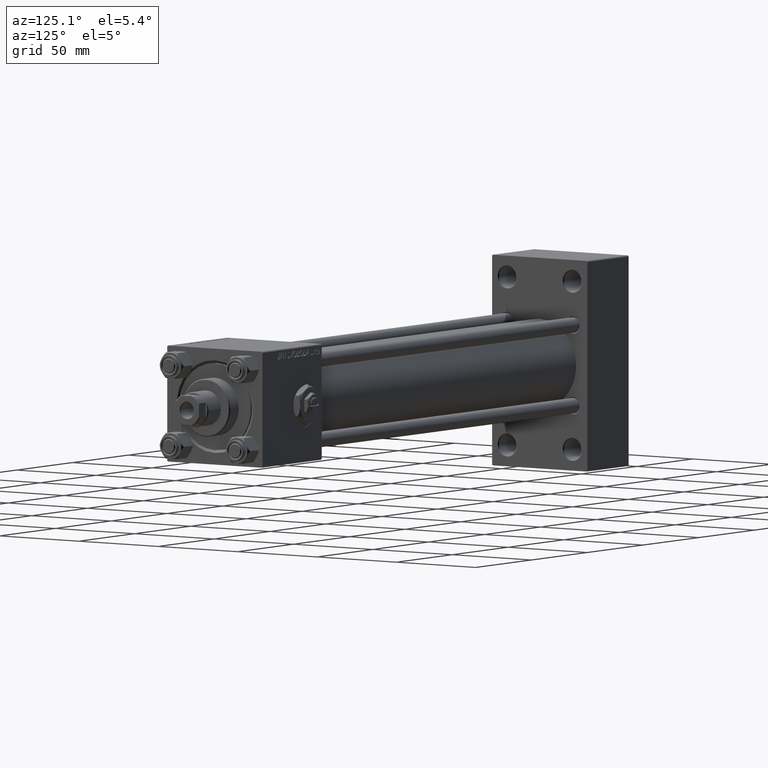
[diagram: clean part render]
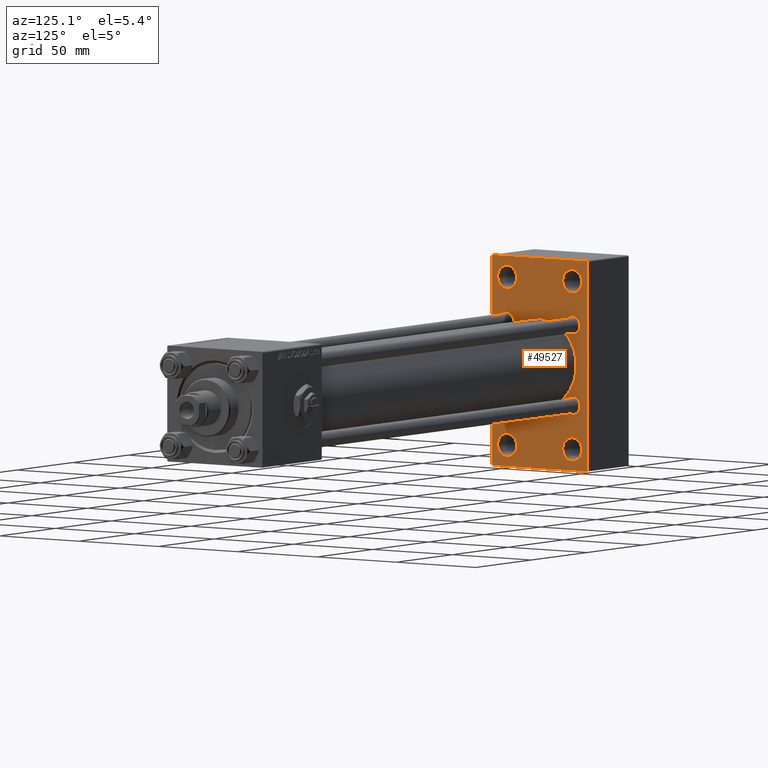
[diagram: same view with one face highlighted and labeled with its STEP entity id]
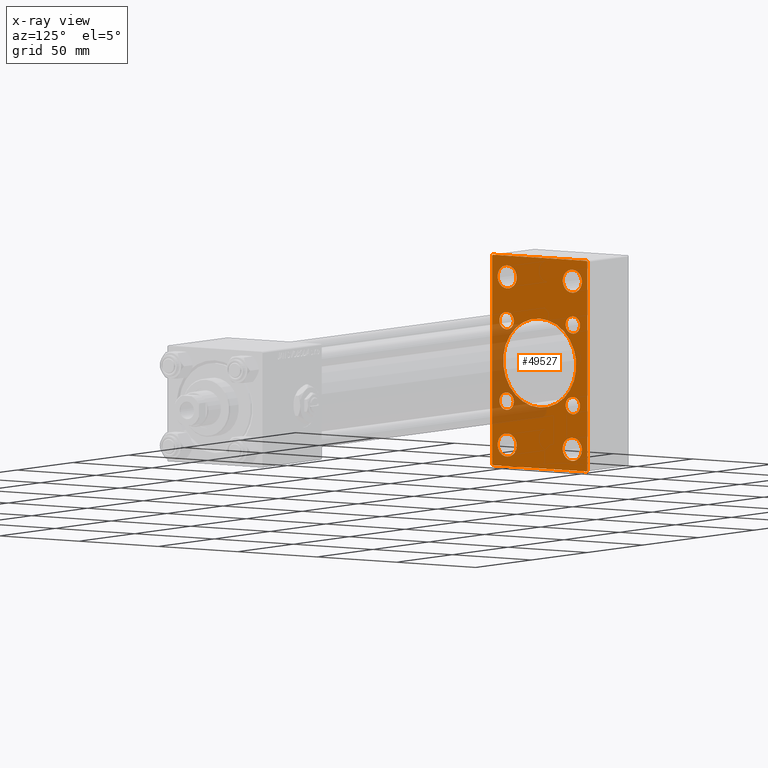
[diagram: x-ray of the same camera — body ghosted, the highlighted face saturated]
A machine part, auxiliary view. The second image highlights one B-rep face of the part: STEP entity #49527.
The next image is the same camera in x-ray: the body ghosted, the highlighted face saturated — about 15% of this face is hidden behind the body in this view.
In plain terms, the highlighted planar face has unit normal (-1, 0, 0).
Its self-contained STEP definition (entity closure, byte-faithful):
#333 = AXIS2_PLACEMENT_3D ( 'NONE', #33102, #17394, #29169 ) ;
#497 = LINE ( 'NONE', #48156, #8175 ) ;
#539 = AXIS2_PLACEMENT_3D ( 'NONE', #31356, #11434, #27417 ) ;
#691 = CIRCLE ( 'NONE', #4056, 4.499999999999948486 ) ;
#1150 = CARTESIAN_POINT ( 'NONE',  ( 37.00000000000000000, 30.00000000000000355, 54.50000000000001421 ) ) ;
#1974 = CARTESIAN_POINT ( 'NONE',  ( 37.00000000000000000, -20.84999999999999076, -20.85000000000000497 ) ) ;
#2238 = DIRECTION ( 'NONE',  ( -1.000000000000000000, 0.000000000000000000, -0.000000000000000000 ) ) ;
#2874 = AXIS2_PLACEMENT_3D ( 'NONE', #38895, #42568, #43072 ) ;
#2887 = ORIENTED_EDGE ( 'NONE', *, *, #39312, .F. ) ;
#3035 = ORIENTED_EDGE ( 'NONE', *, *, #12096, .F. ) ;
#3178 = FACE_BOUND ( 'NONE', #47057, .T. ) ;
#3187 = EDGE_CURVE ( 'NONE', #38726, #13340, #35262, .T. ) ;
#3241 = EDGE_LOOP ( 'NONE', ( #11718, #45493 ) ) ;
#3432 = FACE_BOUND ( 'NONE', #11666, .T. ) ;
#3472 = EDGE_LOOP ( 'NONE', ( #31642, #28426 ) ) ;
#4056 = AXIS2_PLACEMENT_3D ( 'NONE', #47135, #7358, #15990 ) ;
#5294 = VERTEX_POINT ( 'NONE', #44212 ) ;
#5407 = CARTESIAN_POINT ( 'NONE',  ( 37.00000000000000711, -2.602085213965210642E-15, 23.00000000000000000 ) ) ;
#5480 = CARTESIAN_POINT ( 'NONE',  ( 37.00000000000000000, 20.84999999999999787, -20.85000000000000142 ) ) ;
#5776 = LINE ( 'NONE', #14432, #19986 ) ;
#6268 = DIRECTION ( 'NONE',  ( 0.000000000000000000, 0.000000000000000000, 1.000000000000000000 ) ) ;
#6395 = VERTEX_POINT ( 'NONE', #41509 ) ;
#6396 = CARTESIAN_POINT ( 'NONE',  ( 37.00000000000000000, -20.49999999999999645, -43.50000000000000000 ) ) ;
#6418 = CARTESIAN_POINT ( 'NONE',  ( 37.00000000000000000, 20.50000000000000355, 37.49999999999999289 ) ) ;
#6749 = EDGE_CURVE ( 'NONE', #50814, #24410, #37523, .T. ) ;
#7358 = DIRECTION ( 'NONE',  ( -1.000000000000000000, 0.000000000000000000, -0.000000000000000000 ) ) ;
#7393 = EDGE_CURVE ( 'NONE', #51691, #21573, #23696, .T. ) ;
#7890 = DIRECTION ( 'NONE',  ( -1.000000000000000000, 0.000000000000000000, -0.000000000000000000 ) ) ;
#8175 = VECTOR ( 'NONE', #43975, 1000.000000000000114 ) ;
#8203 = EDGE_CURVE ( 'NONE', #13340, #38726, #13560, .T. ) ;
#8504 = LINE ( 'NONE', #1150, #42435 ) ;
#8662 = DIRECTION ( 'NONE',  ( -1.000000000000000000, 0.000000000000000000, -0.000000000000000000 ) ) ;
#8833 = DIRECTION ( 'NONE',  ( 0.000000000000000000, 0.000000000000000000, 1.000000000000000000 ) ) ;
#9841 = VERTEX_POINT ( 'NONE', #24975 ) ;
#9999 = CIRCLE ( 'NONE', #39283, 4.499999999999948486 ) ;
#10105 = LINE ( 'NONE', #49905, #41517 ) ;
#10507 = CARTESIAN_POINT ( 'NONE',  ( 37.00000000000000000, -20.49999999999999645, 37.49999999999999289 ) ) ;
#10851 = CARTESIAN_POINT ( 'NONE',  ( 37.00000000000000000, -29.49999999999998224, -54.50000000000000000 ) ) ;
#11189 = CARTESIAN_POINT ( 'NONE',  ( 37.00000000000000000, -20.49999999999999645, 43.50000000000000000 ) ) ;
#11331 = CARTESIAN_POINT ( 'NONE',  ( 37.00000000000000000, 20.50000000000000355, 49.50000000000000000 ) ) ;
#11434 = DIRECTION ( 'NONE',  ( -1.000000000000000000, 0.000000000000000000, -0.000000000000000000 ) ) ;
#11560 = CARTESIAN_POINT ( 'NONE',  ( 37.00000000000000000, -20.49999999999999645, -43.50000000000000000 ) ) ;
#11650 = DIRECTION ( 'NONE',  ( 0.000000000000000000, 0.000000000000000000, 1.000000000000000000 ) ) ;
#11666 = EDGE_LOOP ( 'NONE', ( #48429, #21691 ) ) ;
#11718 = ORIENTED_EDGE ( 'NONE', *, *, #16063, .T. ) ;
#11796 = FACE_BOUND ( 'NONE', #40716, .T. ) ;
#12096 = EDGE_CURVE ( 'NONE', #16626, #14803, #23516, .T. ) ;
#12215 = CARTESIAN_POINT ( 'NONE',  ( 37.00000000000000000, -29.49999999999998224, -54.50000000000000000 ) ) ;
#12239 = VERTEX_POINT ( 'NONE', #33437 ) ;
#12244 = VERTEX_POINT ( 'NONE', #5407 ) ;
#12518 = VERTEX_POINT ( 'NONE', #28553 ) ;
#13120 = AXIS2_PLACEMENT_3D ( 'NONE', #50579, #14194, #21781 ) ;
#13340 = VERTEX_POINT ( 'NONE', #6418 ) ;
#13560 = CIRCLE ( 'NONE', #27068, 6.000000000000005329 ) ;
#13780 = VERTEX_POINT ( 'NONE', #18793 ) ;
#13824 = EDGE_LOOP ( 'NONE', ( #40342, #47175 ) ) ;
#13921 = CARTESIAN_POINT ( 'NONE',  ( 37.00000000000000000, 20.50000000000000355, -43.50000000000000000 ) ) ;
#13993 = ORIENTED_EDGE ( 'NONE', *, *, #46291, .T. ) ;
#14134 = ORIENTED_EDGE ( 'NONE', *, *, #50898, .T. ) ;
#14176 = EDGE_CURVE ( 'NONE', #34310, #12518, #25446, .T. ) ;
#14194 = DIRECTION ( 'NONE',  ( 1.000000000000000000, -0.000000000000000000, 0.000000000000000000 ) ) ;
#14432 = CARTESIAN_POINT ( 'NONE',  ( 37.00000000000000000, 30.00000000000000355, -53.99999999999995737 ) ) ;
#14803 = VERTEX_POINT ( 'NONE', #12215 ) ;
#14891 = CARTESIAN_POINT ( 'NONE',  ( 37.00000000000000000, 20.50000000000000355, -49.50000000000005684 ) ) ;
#14990 = FACE_BOUND ( 'NONE', #48883, .T. ) ;
#15990 = DIRECTION ( 'NONE',  ( 0.000000000000000000, 0.000000000000000000, 1.000000000000000000 ) ) ;
#15992 = VERTEX_POINT ( 'NONE', #34421 ) ;
#16063 = EDGE_CURVE ( 'NONE', #6395, #25980, #43096, .T. ) ;
#16064 = VERTEX_POINT ( 'NONE', #42254 ) ;
#16203 = ORIENTED_EDGE ( 'NONE', *, *, #38239, .T. ) ;
#16626 = VERTEX_POINT ( 'NONE', #39186 ) ;
#16952 = DIRECTION ( 'NONE',  ( -1.000000000000000000, 0.000000000000000000, -0.000000000000000000 ) ) ;
#17147 = DIRECTION ( 'NONE',  ( -1.000000000000000000, 0.000000000000000000, -0.000000000000000000 ) ) ;
#17148 = VERTEX_POINT ( 'NONE', #18650 ) ;
#17394 = DIRECTION ( 'NONE',  ( 1.000000000000000000, -0.000000000000000000, 0.000000000000000000 ) ) ;
#17628 = CIRCLE ( 'NONE', #30164, 4.499999999999948486 ) ;
#17854 = EDGE_CURVE ( 'NONE', #12239, #14803, #26302, .T. ) ;
#18084 = VERTEX_POINT ( 'NONE', #45350 ) ;
#18115 = ORIENTED_EDGE ( 'NONE', *, *, #19788, .T. ) ;
#18650 = CARTESIAN_POINT ( 'NONE',  ( 37.00000000000000000, -29.99999999999999645, 54.00000000000002132 ) ) ;
#18666 = AXIS2_PLACEMENT_3D ( 'NONE', #5480, #21466, #6268 ) ;
#18793 = CARTESIAN_POINT ( 'NONE',  ( 37.00000000000000711, 2.146024240737016609E-16, -23.00000000000000000 ) ) ;
#18961 = CIRCLE ( 'NONE', #13120, 23.00000000000000000 ) ;
#19285 = VECTOR ( 'NONE', #50729, 1000.000000000000000 ) ;
#19362 = AXIS2_PLACEMENT_3D ( 'NONE', #29844, #22254, #50530 ) ;
#19433 = ORIENTED_EDGE ( 'NONE', *, *, #26559, .T. ) ;
#19729 = CARTESIAN_POINT ( 'NONE',  ( 37.00000000000000000, 20.84999999999999787, -25.34999999999994813 ) ) ;
#19788 = EDGE_CURVE ( 'NONE', #31268, #18084, #42380, .T. ) ;
#19797 = AXIS2_PLACEMENT_3D ( 'NONE', #11189, #51237, #19811 ) ;
#19798 = EDGE_CURVE ( 'NONE', #5294, #30584, #23135, .T. ) ;
#19811 = DIRECTION ( 'NONE',  ( 0.000000000000000000, 0.000000000000000000, 1.000000000000000000 ) ) ;
#19885 = CIRCLE ( 'NONE', #49137, 6.000000000000005329 ) ;
#19986 = VECTOR ( 'NONE', #45830, 1000.000000000000114 ) ;
#20159 = DIRECTION ( 'NONE',  ( -1.000000000000000000, 0.000000000000000000, -0.000000000000000000 ) ) ;
#21040 = DIRECTION ( 'NONE',  ( 0.000000000000000000, -1.000000000000000000, -1.156482317317871478E-16 ) ) ;
#21136 = ORIENTED_EDGE ( 'NONE', *, *, #27588, .T. ) ;
#21466 = DIRECTION ( 'NONE',  ( -1.000000000000000000, 0.000000000000000000, -0.000000000000000000 ) ) ;
#21573 = VERTEX_POINT ( 'NONE', #19729 ) ;
#21589 = AXIS2_PLACEMENT_3D ( 'NONE', #44246, #20159, #24357 ) ;
#21691 = ORIENTED_EDGE ( 'NONE', *, *, #27131, .T. ) ;
#21781 = DIRECTION ( 'NONE',  ( 0.000000000000000000, 0.000000000000000000, 1.000000000000000000 ) ) ;
#21782 = AXIS2_PLACEMENT_3D ( 'NONE', #23343, #46904, #43237 ) ;
#22032 = EDGE_LOOP ( 'NONE', ( #48501, #50190 ) ) ;
#22095 = CIRCLE ( 'NONE', #333, 23.00000000000000000 ) ;
#22242 = ORIENTED_EDGE ( 'NONE', *, *, #6749, .T. ) ;
#22254 = DIRECTION ( 'NONE',  ( -1.000000000000000000, 0.000000000000000000, -0.000000000000000000 ) ) ;
#22368 = DIRECTION ( 'NONE',  ( 0.000000000000000000, 0.000000000000000000, 1.000000000000000000 ) ) ;
#22462 = CIRCLE ( 'NONE', #29138, 4.499999999999948486 ) ;
#22694 = EDGE_LOOP ( 'NONE', ( #19433, #48117 ) ) ;
#23088 = FACE_BOUND ( 'NONE', #22032, .T. ) ;
#23135 = CIRCLE ( 'NONE', #539, 6.000000000000060396 ) ;
#23343 = CARTESIAN_POINT ( 'NONE',  ( 37.00000000000000000, 0.000000000000000000, 0.000000000000000000 ) ) ;
#23480 = CARTESIAN_POINT ( 'NONE',  ( 37.00000000000000000, -29.99999999999999645, 54.50000000000000711 ) ) ;
#23516 = LINE ( 'NONE', #39486, #37924 ) ;
#23696 = CIRCLE ( 'NONE', #18666, 4.499999999999948486 ) ;
#23851 = FACE_BOUND ( 'NONE', #13824, .T. ) ;
#24119 = CARTESIAN_POINT ( 'NONE',  ( 37.00000000000000000, 20.50000000000000355, 43.50000000000000000 ) ) ;
#24357 = DIRECTION ( 'NONE',  ( 0.000000000000000000, 0.000000000000000000, 1.000000000000000000 ) ) ;
#24410 = VERTEX_POINT ( 'NONE', #32851 ) ;
#24975 = CARTESIAN_POINT ( 'NONE',  ( 37.00000000000000000, 20.84999999999999787, 16.35000000000005116 ) ) ;
#25446 = CIRCLE ( 'NONE', #2874, 4.499999999999948486 ) ;
#25851 = VERTEX_POINT ( 'NONE', #30887 ) ;
#25980 = VERTEX_POINT ( 'NONE', #51786 ) ;
#26024 = ORIENTED_EDGE ( 'NONE', *, *, #27187, .T. ) ;
#26302 = LINE ( 'NONE', #10851, #46491 ) ;
#26308 = EDGE_CURVE ( 'NONE', #24410, #17148, #497, .T. ) ;
#26357 = ORIENTED_EDGE ( 'NONE', *, *, #17854, .T. ) ;
#26559 = EDGE_CURVE ( 'NONE', #21573, #51691, #35800, .T. ) ;
#26678 = DIRECTION ( 'NONE',  ( -1.000000000000000000, 0.000000000000000000, -0.000000000000000000 ) ) ;
#27064 = DIRECTION ( 'NONE',  ( -1.000000000000000000, 0.000000000000000000, -0.000000000000000000 ) ) ;
#27068 = AXIS2_PLACEMENT_3D ( 'NONE', #24119, #45035, #36677 ) ;
#27131 = EDGE_CURVE ( 'NONE', #15992, #9841, #691, .T. ) ;
#27187 = EDGE_CURVE ( 'NONE', #25851, #51393, #39173, .T. ) ;
#27417 = DIRECTION ( 'NONE',  ( 0.000000000000000000, 0.000000000000000000, 1.000000000000000000 ) ) ;
#27588 = EDGE_CURVE ( 'NONE', #12518, #34310, #22462, .T. ) ;
#27781 = PLANE ( 'NONE',  #21782 ) ;
#28309 = DIRECTION ( 'NONE',  ( 0.000000000000000000, 0.000000000000000000, 1.000000000000000000 ) ) ;
#28426 = ORIENTED_EDGE ( 'NONE', *, *, #30947, .F. ) ;
#28553 = CARTESIAN_POINT ( 'NONE',  ( 37.00000000000000000, -20.84999999999999076, 25.34999999999995168 ) ) ;
#28558 = CARTESIAN_POINT ( 'NONE',  ( 37.00000000000000000, 20.84999999999999787, 20.85000000000000142 ) ) ;
#28844 = ORIENTED_EDGE ( 'NONE', *, *, #26308, .T. ) ;
#29138 = AXIS2_PLACEMENT_3D ( 'NONE', #37612, #16952, #8833 ) ;
#29169 = DIRECTION ( 'NONE',  ( 0.000000000000000000, 0.000000000000000000, 1.000000000000000000 ) ) ;
#29448 = VERTEX_POINT ( 'NONE', #32457 ) ;
#29636 = DIRECTION ( 'NONE',  ( 0.000000000000000000, 0.000000000000000000, 1.000000000000000000 ) ) ;
#29844 = CARTESIAN_POINT ( 'NONE',  ( 37.00000000000000000, 20.50000000000000355, 43.50000000000000000 ) ) ;
#29915 = EDGE_CURVE ( 'NONE', #51393, #25851, #9999, .T. ) ;
#30164 = AXIS2_PLACEMENT_3D ( 'NONE', #28558, #8662, #28309 ) ;
#30584 = VERTEX_POINT ( 'NONE', #14891 ) ;
#30670 = ORIENTED_EDGE ( 'NONE', *, *, #40237, .T. ) ;
#30887 = CARTESIAN_POINT ( 'NONE',  ( 37.00000000000000000, -20.84999999999999076, -16.35000000000005471 ) ) ;
#30947 = EDGE_CURVE ( 'NONE', #13780, #12244, #22095, .T. ) ;
#30962 = FACE_BOUND ( 'NONE', #3241, .T. ) ;
#31268 = VERTEX_POINT ( 'NONE', #10507 ) ;
#31356 = CARTESIAN_POINT ( 'NONE',  ( 37.00000000000000000, 20.50000000000000355, -43.50000000000000000 ) ) ;
#31642 = ORIENTED_EDGE ( 'NONE', *, *, #37279, .F. ) ;
#32457 = CARTESIAN_POINT ( 'NONE',  ( 37.00000000000000000, 30.00000000000000355, -53.99999999999995737 ) ) ;
#32484 = CIRCLE ( 'NONE', #35843, 6.000000000000060396 ) ;
#32851 = CARTESIAN_POINT ( 'NONE',  ( 37.00000000000000000, -29.50000000000000711, 54.50000000000000711 ) ) ;
#33102 = CARTESIAN_POINT ( 'NONE',  ( 37.00000000000000711, -2.602085213965210642E-15, 0.000000000000000000 ) ) ;
#33437 = CARTESIAN_POINT ( 'NONE',  ( 37.00000000000000000, -29.99999999999999645, -53.99999999999996447 ) ) ;
#34255 = CARTESIAN_POINT ( 'NONE',  ( 37.00000000000000000, 29.50000000000000355, 54.50000000000001421 ) ) ;
#34310 = VERTEX_POINT ( 'NONE', #40895 ) ;
#34421 = CARTESIAN_POINT ( 'NONE',  ( 37.00000000000000000, 20.84999999999999787, 25.34999999999994813 ) ) ;
#35262 = CIRCLE ( 'NONE', #19362, 6.000000000000005329 ) ;
#35639 = FACE_BOUND ( 'NONE', #3472, .T. ) ;
#35660 = CIRCLE ( 'NONE', #49020, 6.000000000000060396 ) ;
#35800 = CIRCLE ( 'NONE', #43301, 4.499999999999948486 ) ;
#35843 = AXIS2_PLACEMENT_3D ( 'NONE', #11560, #7890, #39335 ) ;
#36677 = DIRECTION ( 'NONE',  ( 0.000000000000000000, 0.000000000000000000, 1.000000000000000000 ) ) ;
#37172 = EDGE_CURVE ( 'NONE', #30584, #5294, #35660, .T. ) ;
#37279 = EDGE_CURVE ( 'NONE', #12244, #13780, #18961, .T. ) ;
#37523 = LINE ( 'NONE', #37779, #46234 ) ;
#37612 = CARTESIAN_POINT ( 'NONE',  ( 37.00000000000000000, -20.84999999999999076, 20.85000000000000497 ) ) ;
#37779 = CARTESIAN_POINT ( 'NONE',  ( 37.00000000000000000, 30.00000000000000355, 54.50000000000001421 ) ) ;
#37851 = DIRECTION ( 'NONE',  ( 0.000000000000000000, 0.000000000000000000, 1.000000000000000000 ) ) ;
#37924 = VECTOR ( 'NONE', #47590, 1000.000000000000000 ) ;
#38239 = EDGE_CURVE ( 'NONE', #16064, #50814, #10105, .T. ) ;
#38336 = ORIENTED_EDGE ( 'NONE', *, *, #14176, .T. ) ;
#38726 = VERTEX_POINT ( 'NONE', #11331 ) ;
#38895 = CARTESIAN_POINT ( 'NONE',  ( 37.00000000000000000, -20.84999999999999076, 20.85000000000000497 ) ) ;
#39173 = CIRCLE ( 'NONE', #21589, 4.499999999999948486 ) ;
#39186 = CARTESIAN_POINT ( 'NONE',  ( 37.00000000000000000, 29.49999999999997513, -54.49999999999998579 ) ) ;
#39283 = AXIS2_PLACEMENT_3D ( 'NONE', #1974, #2238, #37851 ) ;
#39312 = EDGE_CURVE ( 'NONE', #16064, #29448, #8504, .T. ) ;
#39335 = DIRECTION ( 'NONE',  ( 0.000000000000000000, 0.000000000000000000, 1.000000000000000000 ) ) ;
#39486 = CARTESIAN_POINT ( 'NONE',  ( 37.00000000000000000, 30.00000000000000355, -54.49999999999998579 ) ) ;
#40065 = ORIENTED_EDGE ( 'NONE', *, *, #29915, .T. ) ;
#40237 = EDGE_CURVE ( 'NONE', #18084, #31268, #19885, .T. ) ;
#40342 = ORIENTED_EDGE ( 'NONE', *, *, #8203, .T. ) ;
#40716 = EDGE_LOOP ( 'NONE', ( #38336, #21136 ) ) ;
#40895 = CARTESIAN_POINT ( 'NONE',  ( 37.00000000000000000, -20.84999999999999076, 16.35000000000005471 ) ) ;
#41509 = CARTESIAN_POINT ( 'NONE',  ( 37.00000000000000000, -20.49999999999999645, -49.50000000000005684 ) ) ;
#41517 = VECTOR ( 'NONE', #46235, 1000.000000000000114 ) ;
#41830 = CARTESIAN_POINT ( 'NONE',  ( 37.00000000000000000, 20.84999999999999787, -16.35000000000005116 ) ) ;
#41848 = CARTESIAN_POINT ( 'NONE',  ( 37.00000000000000000, 20.84999999999999787, -20.85000000000000142 ) ) ;
#42254 = CARTESIAN_POINT ( 'NONE',  ( 37.00000000000000000, 30.00000000000000355, 54.00000000000001421 ) ) ;
#42264 = AXIS2_PLACEMENT_3D ( 'NONE', #6396, #27064, #22368 ) ;
#42380 = CIRCLE ( 'NONE', #19797, 6.000000000000005329 ) ;
#42435 = VECTOR ( 'NONE', #44375, 1000.000000000000000 ) ;
#42568 = DIRECTION ( 'NONE',  ( -1.000000000000000000, 0.000000000000000000, -0.000000000000000000 ) ) ;
#42990 = FACE_OUTER_BOUND ( 'NONE', #48598, .T. ) ;
#43072 = DIRECTION ( 'NONE',  ( 0.000000000000000000, 0.000000000000000000, 1.000000000000000000 ) ) ;
#43096 = CIRCLE ( 'NONE', #42264, 6.000000000000060396 ) ;
#43237 = DIRECTION ( 'NONE',  ( -0.000000000000000000, 0.000000000000000000, 1.000000000000000000 ) ) ;
#43301 = AXIS2_PLACEMENT_3D ( 'NONE', #41848, #26678, #11650 ) ;
#43975 = DIRECTION ( 'NONE',  ( -0.000000000000000000, -0.7071067811865474617, -0.7071067811865474617 ) ) ;
#44212 = CARTESIAN_POINT ( 'NONE',  ( 37.00000000000000000, 20.50000000000000355, -37.49999999999993605 ) ) ;
#44246 = CARTESIAN_POINT ( 'NONE',  ( 37.00000000000000000, -20.84999999999999076, -20.85000000000000497 ) ) ;
#44375 = DIRECTION ( 'NONE',  ( 0.000000000000000000, 0.000000000000000000, -1.000000000000000000 ) ) ;
#45022 = EDGE_CURVE ( 'NONE', #25980, #6395, #32484, .T. ) ;
#45035 = DIRECTION ( 'NONE',  ( -1.000000000000000000, 0.000000000000000000, -0.000000000000000000 ) ) ;
#45350 = CARTESIAN_POINT ( 'NONE',  ( 37.00000000000000000, -20.49999999999999645, 49.50000000000000000 ) ) ;
#45493 = ORIENTED_EDGE ( 'NONE', *, *, #45022, .T. ) ;
#45820 = CARTESIAN_POINT ( 'NONE',  ( 37.00000000000000000, -20.84999999999999076, -25.34999999999995168 ) ) ;
#45830 = DIRECTION ( 'NONE',  ( -0.000000000000000000, 0.7071067811865474617, 0.7071067811865474617 ) ) ;
#46234 = VECTOR ( 'NONE', #21040, 1000.000000000000000 ) ;
#46235 = DIRECTION ( 'NONE',  ( 0.000000000000000000, -0.7071067811865474617, 0.7071067811865474617 ) ) ;
#46291 = EDGE_CURVE ( 'NONE', #16626, #29448, #5776, .T. ) ;
#46385 = DIRECTION ( 'NONE',  ( -1.000000000000000000, 0.000000000000000000, -0.000000000000000000 ) ) ;
#46491 = VECTOR ( 'NONE', #50128, 1000.000000000000000 ) ;
#46904 = DIRECTION ( 'NONE',  ( -1.000000000000000000, 0.000000000000000000, -0.000000000000000000 ) ) ;
#47057 = EDGE_LOOP ( 'NONE', ( #40065, #26024 ) ) ;
#47135 = CARTESIAN_POINT ( 'NONE',  ( 37.00000000000000000, 20.84999999999999787, 20.85000000000000142 ) ) ;
#47175 = ORIENTED_EDGE ( 'NONE', *, *, #3187, .T. ) ;
#47590 = DIRECTION ( 'NONE',  ( 0.000000000000000000, -1.000000000000000000, -2.312964634635742957E-16 ) ) ;
#47665 = FACE_BOUND ( 'NONE', #22694, .T. ) ;
#48117 = ORIENTED_EDGE ( 'NONE', *, *, #7393, .T. ) ;
#48156 = CARTESIAN_POINT ( 'NONE',  ( 37.00000000000000000, -29.99999999999999645, 54.00000000000002132 ) ) ;
#48309 = CARTESIAN_POINT ( 'NONE',  ( 37.00000000000000000, -20.49999999999999645, 43.50000000000000000 ) ) ;
#48429 = ORIENTED_EDGE ( 'NONE', *, *, #50401, .T. ) ;
#48501 = ORIENTED_EDGE ( 'NONE', *, *, #37172, .T. ) ;
#48562 = DIRECTION ( 'NONE',  ( 0.000000000000000000, 0.000000000000000000, 1.000000000000000000 ) ) ;
#48598 = EDGE_LOOP ( 'NONE', ( #3035, #13993, #2887, #16203, #22242, #28844, #14134, #26357 ) ) ;
#48883 = EDGE_LOOP ( 'NONE', ( #18115, #30670 ) ) ;
#49020 = AXIS2_PLACEMENT_3D ( 'NONE', #13921, #46385, #29636 ) ;
#49137 = AXIS2_PLACEMENT_3D ( 'NONE', #48309, #17147, #48562 ) ;
#49527 = ADVANCED_FACE ( 'NONE', ( #23851, #14990, #30962, #23088, #3178, #47665, #11796, #3432, #35639, #42990 ), #27781, .F. ) ;
#49905 = CARTESIAN_POINT ( 'NONE',  ( 37.00000000000000000, 29.50000000000000355, 54.50000000000001421 ) ) ;
#50128 = DIRECTION ( 'NONE',  ( 0.000000000000000000, 0.7071067811865524577, -0.7071067811865426878 ) ) ;
#50190 = ORIENTED_EDGE ( 'NONE', *, *, #19798, .T. ) ;
#50401 = EDGE_CURVE ( 'NONE', #9841, #15992, #17628, .T. ) ;
#50530 = DIRECTION ( 'NONE',  ( 0.000000000000000000, 0.000000000000000000, 1.000000000000000000 ) ) ;
#50579 = CARTESIAN_POINT ( 'NONE',  ( 37.00000000000000711, -2.602085213965210642E-15, 0.000000000000000000 ) ) ;
#50729 = DIRECTION ( 'NONE',  ( 0.000000000000000000, 0.000000000000000000, -1.000000000000000000 ) ) ;
#50814 = VERTEX_POINT ( 'NONE', #34255 ) ;
#50898 = EDGE_CURVE ( 'NONE', #17148, #12239, #51747, .T. ) ;
#51237 = DIRECTION ( 'NONE',  ( -1.000000000000000000, 0.000000000000000000, -0.000000000000000000 ) ) ;
#51393 = VERTEX_POINT ( 'NONE', #45820 ) ;
#51691 = VERTEX_POINT ( 'NONE', #41830 ) ;
#51747 = LINE ( 'NONE', #23480, #19285 ) ;
#51786 = CARTESIAN_POINT ( 'NONE',  ( 37.00000000000000000, -20.49999999999999645, -37.49999999999993605 ) ) ;